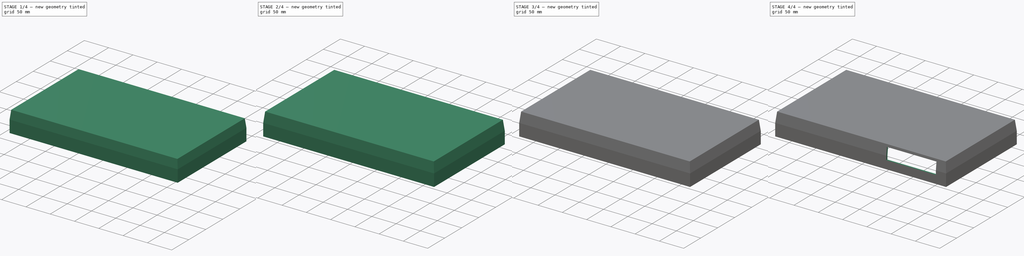
[diagram: build sequence overview — one tinted view per stage of 4, left to right]
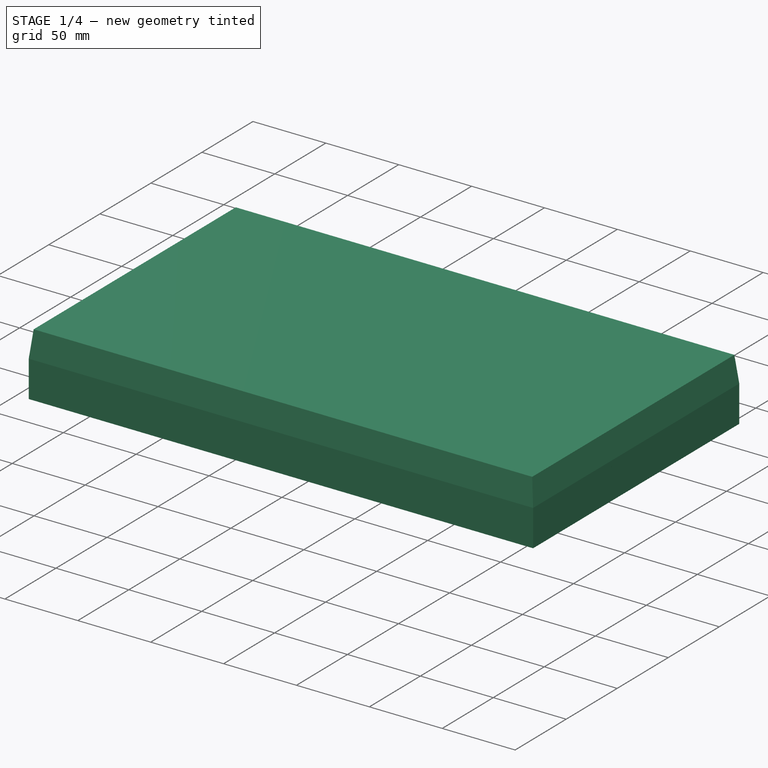
[diagram: stage 1 of 4 — iso view after this stage's code; geometry added in this stage tinted green]
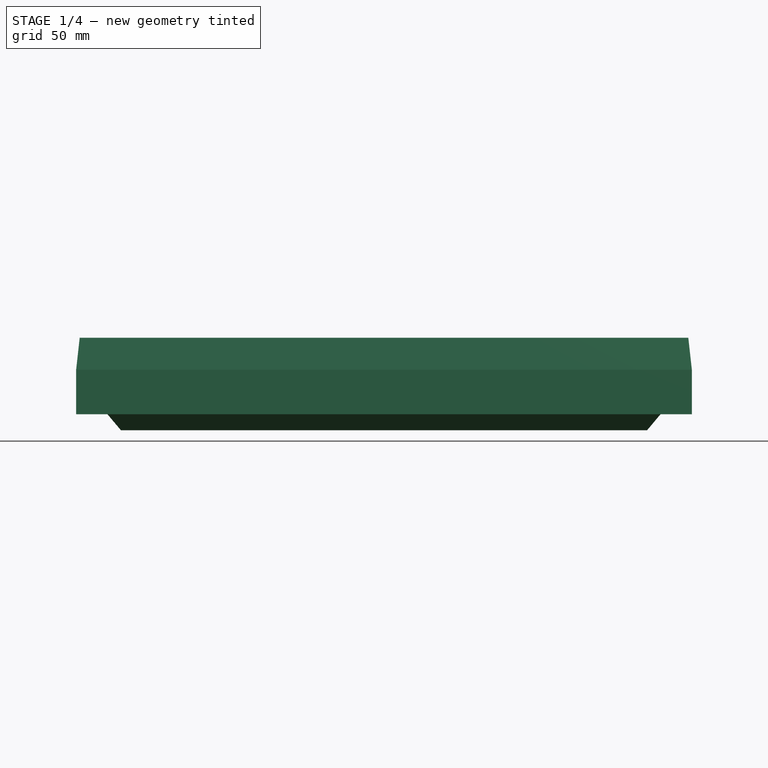
[diagram: stage 1 of 4 — front view after this stage's code; geometry added in this stage tinted green]
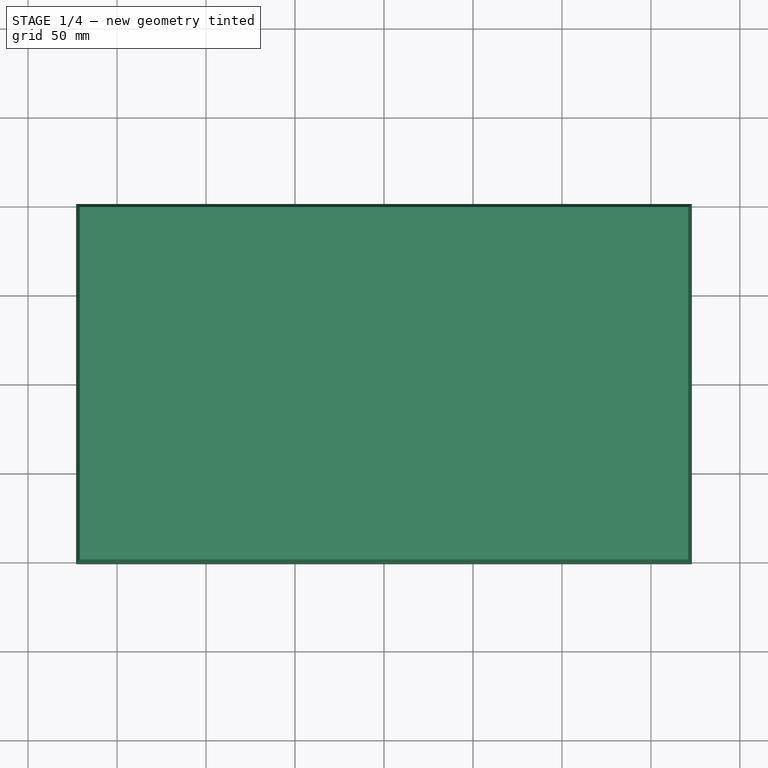
[diagram: stage 1 of 4 — top view after this stage's code; geometry added in this stage tinted green]
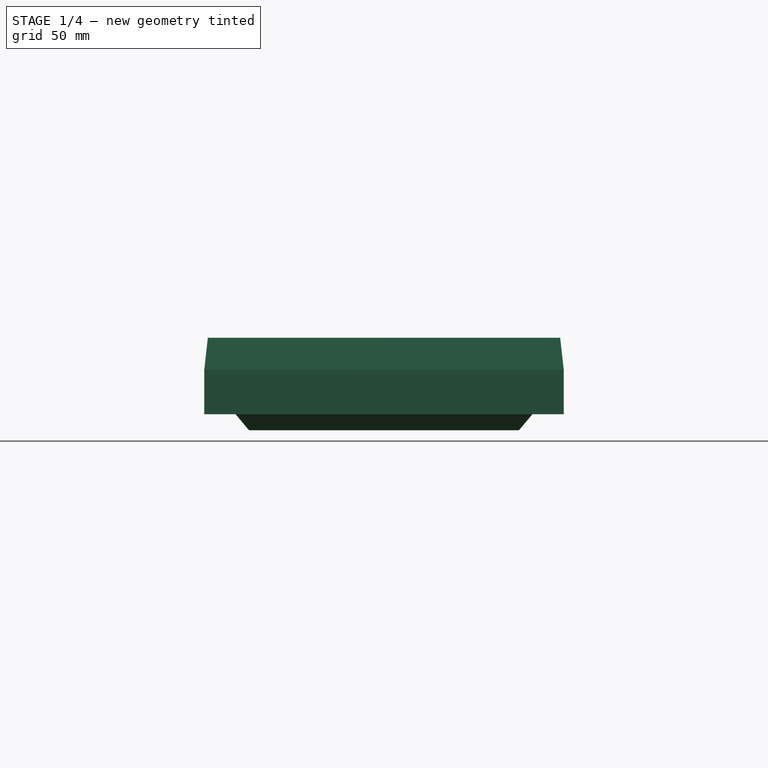
[diagram: stage 1 of 4 — right view after this stage's code; geometry added in this stage tinted green]
FCSTD DOCUMENT  (FreeCAD 0.21R33771 (Git))
Label: CaseTopNewSolid
License: All rights reserved
LicenseURL: https://en.wikipedia.org/wiki/All_rights_reserved
objects: Sketcher::SketchObject×7, PartDesign::Pad×4, PartDesign::Pocket×3, PartDesign::Chamfer×2, PartDesign::Body×2, Spreadsheet::Sheet×1, PartDesign::Thickness×1, PartDesign::Boolean×1, App::Part×1
note: 30 computed .brp shape members not serialized (recipe doc carries the construction recipe); baked Part::Feature solids carry a one-line shape summary decoded from their .brp

FEATURE [Spreadsheet::Sheet] Spreadsheet
  cells = A1='Column Height; B1=22; A2='Column Radius; B2=4; A3='Fin Height; B3==B1 - B4; A4='Fin Raise; B4=2
FEATURE [Sketcher::SketchObject] Sketch011
  AttachmentOffset = pos=(0,0,6) rot=(0,0,1;0rad)
  FullyConstrained = true
  MapMode = 5
  Placement = pos=(0,0,6) rot=(0,0,1;0rad)
  Support = -> [XY_Plane008]
  sketch-geometry (5):
    g0: LineSegment StartX=-173 StartY=101 StartZ=0 EndX=-173 EndY=-101 EndZ=0
    g1: LineSegment StartX=-173 StartY=-101 StartZ=0 EndX=173 EndY=-101 EndZ=0
    g2: LineSegment StartX=173 StartY=-101 StartZ=0 EndX=173 EndY=101 EndZ=0
    g3: LineSegment StartX=173 StartY=101 StartZ=0 EndX=-173 EndY=101 EndZ=0
    g4: GeomPoint X=0 Y=0 Z=0
  constraints (12):
    c: Coincident(g0,g1)
    c: Coincident(g1,g2)
    c: Coincident(g2,g3)
    c: Coincident(g3,g0)
    c: Horizontal(g1)
    c: Horizontal(g3)
    c: Vertical(g0)
    c: Vertical(g2)
    c: Symmetric(g1,g0,g4)
    c: Coincident(g4,g-1)
    c: DistanceX(g3,g3) = 346
    c: DistanceY(g0,g0) = 202
FEATURE [PartDesign::Pad] Pad003
  Direction = (0,0,1)
  Length = 43
  Length2 = 10
  Profile = -> Sketch011
  ReferenceAxis = -> Sketch011 [N_Axis]
  Refine = true
  Type = 0
FEATURE [PartDesign::Chamfer] Chamfer
  Angle = 45
  Base = -> Pad003 [Face6]
  BaseFeature = -> Pad003
  ChamferType = 1
  FlipDirection = false
  Refine = true
  Size = 2
  Size2 = 18
  SupportTransform = false
  UseAllEdges = false
FEATURE [Sketcher::SketchObject] Sketch013
  AttachmentOffset = pos=(0,0,27) rot=(0,0,1;0rad)
  FullyConstrained = false
  MapMode = 5
  Placement = pos=(0,0,27) rot=(0,0,1;0rad)
  Support = -> [XY_Plane009]
  sketch-geometry (5):
    g0: LineSegment StartX=173 StartY=-101 StartZ=0 EndX=173 EndY=101 EndZ=0
    g1: LineSegment StartX=173 StartY=101 StartZ=0 EndX=-173 EndY=101 EndZ=0
    g2: LineSegment StartX=-173 StartY=101 StartZ=0 EndX=-173 EndY=-101 EndZ=0
    g3: LineSegment StartX=-173 StartY=-101 StartZ=0 EndX=173 EndY=-101 EndZ=0
    g4: GeomPoint X=0 Y=0 Z=0
  constraints (10):
    c: Coincident(g0,g1)
    c: Coincident(g1,g2)
    c: Coincident(g2,g3)
    c: Coincident(g3,g0)
    c: Horizontal(g1)
    c: Horizontal(g3)
    c: Vertical(g0)
    c: Vertical(g2)
    c: Symmetric(g1,g0,g4)
    c: Coincident(g4,g-1)
FEATURE [PartDesign::Pad] Pad005
  Direction = (0,0,1)
  Length = 30
  Length2 = 10
  Profile = -> Sketch013
  ReferenceAxis = -> Sketch013 [N_Axis]
  Refine = true
  Reversed = true
  TaperAngle = -40
  Type = 0
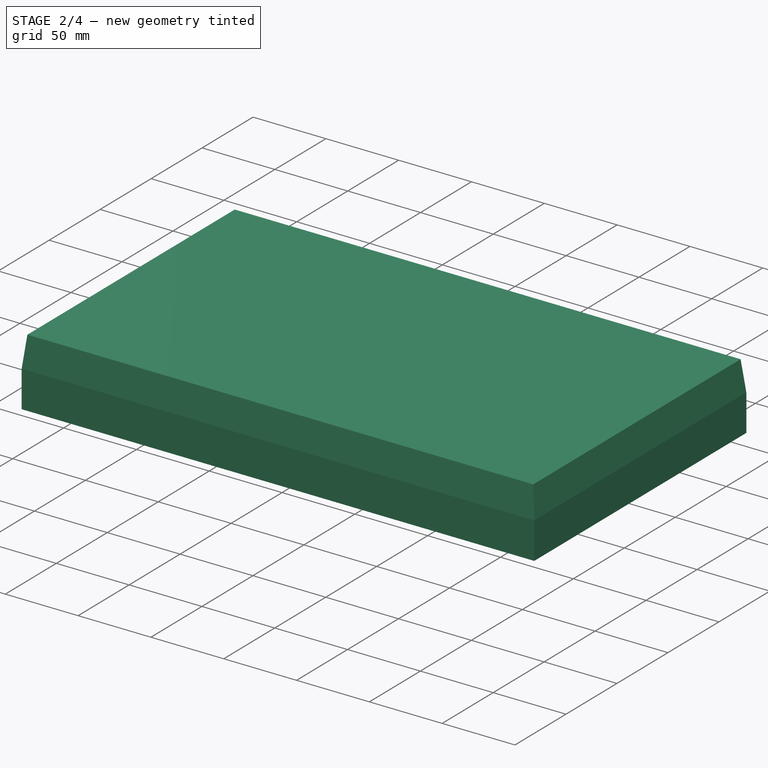
[diagram: stage 2 of 4 — iso view after this stage's code; geometry added in this stage tinted green]
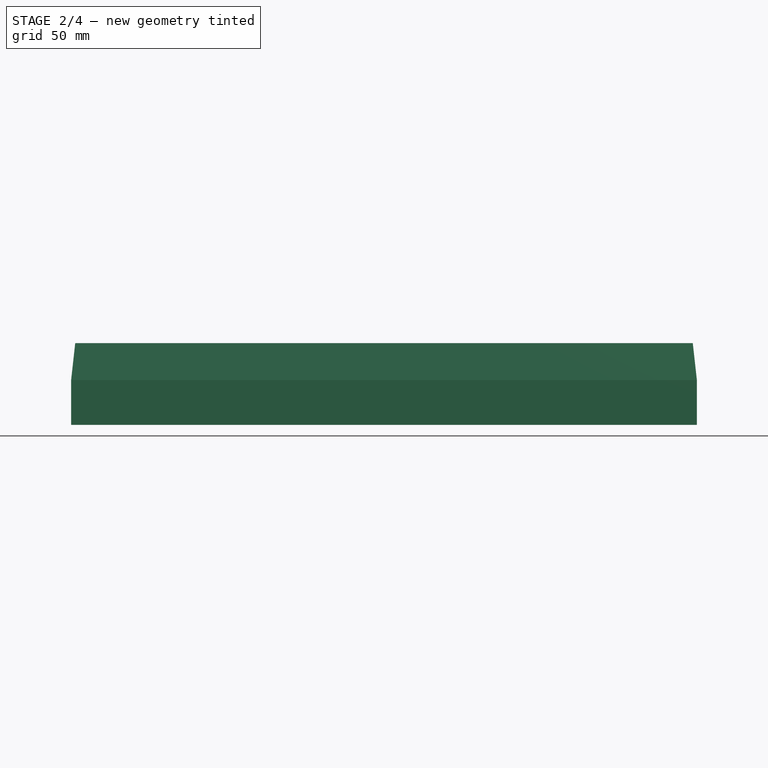
[diagram: stage 2 of 4 — front view after this stage's code; geometry added in this stage tinted green]
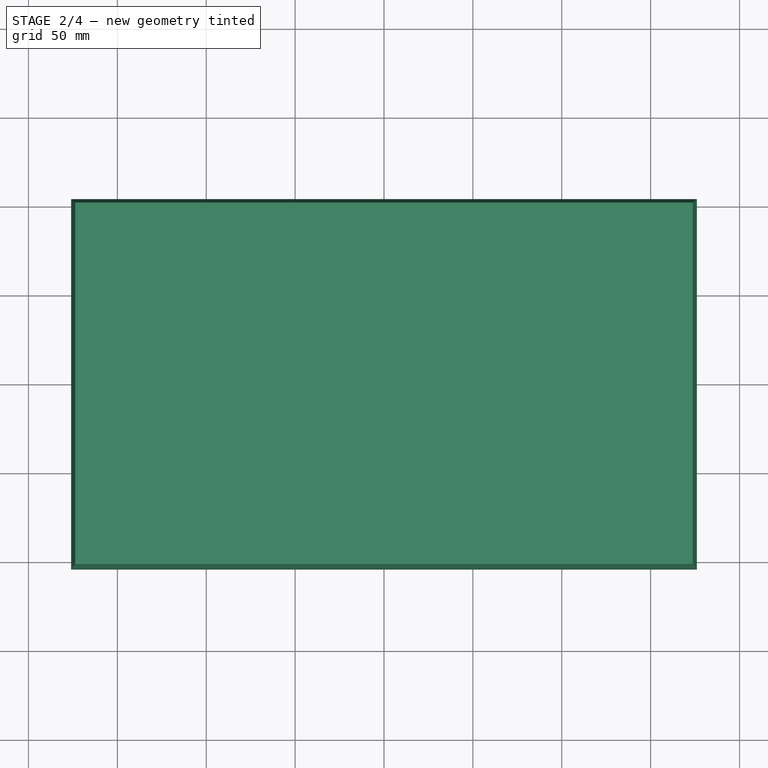
[diagram: stage 2 of 4 — top view after this stage's code; geometry added in this stage tinted green]
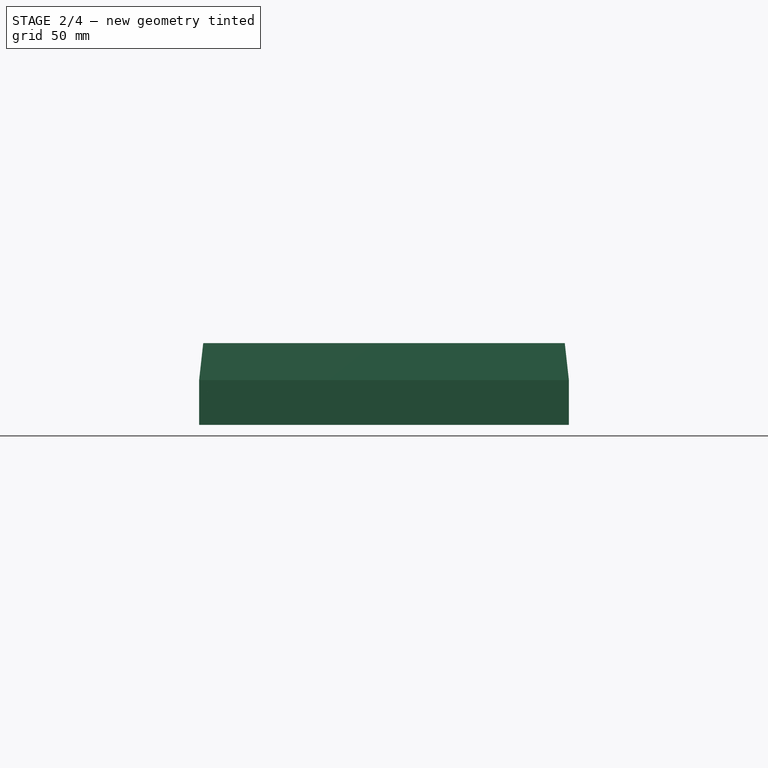
[diagram: stage 2 of 4 — right view after this stage's code; geometry added in this stage tinted green]
FEATURE [PartDesign::Thickness] Thickness001
  Base = -> Chamfer [Face4]
  BaseFeature = -> Chamfer
  Intersection = true
  Join = 1
  Mode = 0
  Refine = true
  SupportTransform = false
  Value = 3
FEATURE [Sketcher::SketchObject] Sketch012  label="Mounts"
  ExternalGeometry = -> [Thickness001]
  FullyConstrained = true
  MapMode = 5
  Placement = pos=(0,0,6) rot=(1,0,0;3.14159rad)
  Support = -> [Thickness001]
  sketch-geometry (40):
    g0: LineSegment StartX=-164 StartY=101 StartZ=0 EndX=-156 EndY=101 EndZ=0
    g1: LineSegment StartX=-156 StartY=101 StartZ=0 EndX=-156 EndY=95 EndZ=0
    g2: ArcOfCircle CenterX=-160 CenterY=95 CenterZ=0 NormalX=0 NormalY=0 NormalZ=1 AngleXU=0 Radius=4 StartAngle=3.14159 EndAngle=6.28319
    g3: LineSegment StartX=-164 StartY=95 StartZ=0 EndX=-164 EndY=101 EndZ=0
    g4: LineSegment StartX=164 StartY=101 StartZ=0 EndX=156 EndY=101 EndZ=0
    g5: LineSegment StartX=156 StartY=101 StartZ=0 EndX=156 EndY=95 EndZ=0
    g6: ArcOfCircle CenterX=160 CenterY=95 CenterZ=0 NormalX=0 NormalY=0 NormalZ=1 AngleXU=0 Radius=4 StartAngle=3.14159 EndAngle=6.28319
    g7: LineSegment StartX=164 StartY=95 StartZ=0 EndX=164 EndY=101 EndZ=0
    g8: LineSegment StartX=-3.99999 StartY=101 StartZ=0 EndX=4.00002 EndY=101 EndZ=0
    g9: LineSegment StartX=4.00002 StartY=101 StartZ=0 EndX=4.00002 EndY=95 EndZ=0
    g10: ArcOfCircle CenterX=1.6e-05 CenterY=95 CenterZ=0 NormalX=0 NormalY=0 NormalZ=1 AngleXU=0 Radius=4 StartAngle=3.14159 EndAngle=6.28319
    g11: LineSegment StartX=-3.99999 StartY=95 StartZ=0 EndX=-3.99999 EndY=101 EndZ=0
    g12: LineSegment StartX=-3.99999 StartY=-101 StartZ=0 EndX=4.00002 EndY=-101 EndZ=0
    g13: LineSegment StartX=4.00002 StartY=-101 StartZ=0 EndX=4.00002 EndY=-95 EndZ=0
    g14: ArcOfCircle CenterX=1.6e-05 CenterY=-95 CenterZ=0 NormalX=0 NormalY=0 NormalZ=1 AngleXU=0 Radius=4 StartAngle=0 EndAngle=3.14159
    g15: LineSegment StartX=-3.99999 StartY=-95 StartZ=0 EndX=-3.99999 EndY=-101 EndZ=0
    g16: LineSegment StartX=-159.001 StartY=-101 StartZ=0 EndX=-151.001 EndY=-101 EndZ=0
    g17: LineSegment StartX=-151.001 StartY=-101 StartZ=0 EndX=-151.001 EndY=-95 EndZ=0
    g18: ArcOfCircle CenterX=-155.001 CenterY=-95 CenterZ=0 NormalX=0 NormalY=0 NormalZ=1 AngleXU=0 Radius=4 StartAngle=0 EndAngle=3.14159
    g19: LineSegment StartX=-159.001 StartY=-95 StartZ=0 EndX=-159.001 EndY=-101 EndZ=0
    g20: LineSegment StartX=151 StartY=-101 StartZ=0 EndX=159 EndY=-101 EndZ=0
    g21: LineSegment StartX=159 StartY=-101 StartZ=0 EndX=159 EndY=-95 EndZ=0
    g22: ArcOfCircle CenterX=155 CenterY=-95 CenterZ=0 NormalX=0 NormalY=0 NormalZ=1 AngleXU=0 Radius=4 StartAngle=0 EndAngle=3.14159
    g23: LineSegment StartX=151 StartY=-95 StartZ=0 EndX=151 EndY=-101 EndZ=0
    g24: LineSegment StartX=-173 StartY=4 StartZ=0 EndX=-167 EndY=4 EndZ=0
    g25: ArcOfCircle CenterX=-167 CenterY=0 CenterZ=0 NormalX=0 NormalY=0 NormalZ=1 AngleXU=0 Radius=4 StartAngle=4.71242 EndAngle=7.85398
    g26: LineSegment StartX=-167 StartY=-4 StartZ=0 EndX=-173 EndY=-4 EndZ=0
    g27: LineSegment StartX=-173 StartY=-4 StartZ=0 EndX=-173 EndY=4 EndZ=0
    g28: LineSegment StartX=173 StartY=4 StartZ=0 EndX=167 EndY=4 EndZ=0
    g29: ArcOfCircle CenterX=167 CenterY=0 CenterZ=0 NormalX=0 NormalY=0 NormalZ=1 AngleXU=0 Radius=4 StartAngle=1.5708 EndAngle=4.71236
    g30: LineSegment StartX=167 StartY=-4 StartZ=0 EndX=173 EndY=-4 EndZ=0
    g31: LineSegment StartX=173 StartY=-4 StartZ=0 EndX=173 EndY=4 EndZ=0
    g32: Circle CenterX=-155.001 CenterY=-95 CenterZ=0 NormalX=0 NormalY=0 NormalZ=1 AngleXU=0 Radius=2.25
    g33: Circle CenterX=1.6e-05 CenterY=-95 CenterZ=0 NormalX=0 NormalY=0 NormalZ=1 AngleXU=0 Radius=2.25
    g34: Circle CenterX=155.001 CenterY=-95 CenterZ=0 NormalX=0 NormalY=0 NormalZ=1 AngleXU=0 Radius=2.25
    g35: Circle CenterX=-167 CenterY=0 CenterZ=0 NormalX=0 NormalY=0 NormalZ=1 AngleXU=0 Radius=2.25
    g36: Circle CenterX=-160 CenterY=95 CenterZ=0 NormalX=0 NormalY=0 NormalZ=1 AngleXU=0 Radius=2.25
    g37: Circle CenterX=160 CenterY=95 CenterZ=0 NormalX=0 NormalY=0 NormalZ=1 AngleXU=0 Radius=2.25
    g38: Circle CenterX=167 CenterY=0 CenterZ=0 NormalX=0 NormalY=0 NormalZ=1 AngleXU=0 Radius=2.25
    g39: Circle CenterX=1.6e-05 CenterY=95 CenterZ=0 NormalX=0 NormalY=0 NormalZ=1 AngleXU=0 Radius=2.25
  constraints (85):
    c: PointOnObject(g0,g-3)
    c: PointOnObject(g0,g-3)
    c: Coincident(g0,g1)
    c: Vertical(g1)
    c: Tangent(g1,g2) = 1.5708
    c: Angle(g2) = 3.14159
    c: Tangent(g2,g3) = 1.5708
    c: Coincident(g0,g3)
    c: Block(g1)
    c: Block(g0)
    c: Coincident(g4,g5)
    c: Tangent(g5,g6) = -1.5708
    c: Angle(g6) = 3.14159
    c: Tangent(g6,g7) = -1.5708
    c: Coincident(g4,g7)
    c: Block(g5)
    c: Block(g4)
    c: Coincident(g8,g9)
    c: Vertical(g9)
    c: Tangent(g9,g10) = 1.5708
    c: Tangent(g10,g11) = 1.5708
    c: Coincident(g8,g11)
    c: Block(g9)
    c: Block(g8)
    c: Block(g10)
    c: Radius(g10) = 4
    c: Coincident(g12,g13)
    c: Vertical(g13)
    c: Tangent(g13,g14) = -1.5708
    c: Tangent(g14,g15) = -1.5708
    c: Coincident(g12,g15)
    c: Block(g13)
    c: Block(g12)
    c: Block(g14)
    c: Radius(g14) = 4
    c: Coincident(g16,g17)
    c: Vertical(g17)
    c: Tangent(g17,g18) = -1.5708
    c: Tangent(g18,g19) = -1.5708
    c: Coincident(g16,g19)
    c: Block(g17)
    c: Block(g16)
    c: Block(g18)
    c: Equal(g14,g18) = 4
    c: Coincident(g20,g21)
    c: Vertical(g21)
    c: Tangent(g21,g22) = -1.5708
    c: Tangent(g22,g23) = -1.5708
    c: Coincident(g20,g23)
    c: Block(g21)
    c: Block(g20)
    c: Block(g22)
    c: Equal(g14,g22) = 4
    c: Tangent(g24,g25) = 1.5708
    c: Coincident(g25,g26)
    c: Coincident(g26,g27)
    c: Coincident(g27,g24)
    c: Vertical(g27)
    c: DistanceX(g24,g24) = 6
    c: Radius(g25) = 4
    c: Parallel(g24,g-1)
    c: Parallel(g26,g-1)
    c: Block(g25)
    c: Tangent(g28,g29) = -1.5708
    c: Coincident(g29,g30)
    c: Coincident(g30,g31)
    c: Coincident(g31,g28)
    c: Vertical(g31)
    c: Radius(g29) = 4
    c: Block(g29)
    c: PointOnObject(g28,g-6)
    c: Block(g30)
    c: Coincident(g32,g18)
    c: Diameter(g32) = 4.5
    c: Equal(g32,g33) = 4.5
    c: Block(g33)
    c: Diameter(g34) = 4.5
    c: Block(g34)
    c: Equal(g32,g35) = 4.5
    c: Block(g35)
    c: Equal(g32,g36) = 4.5
    c: Block(g36)
    c: Block(g37)
    c: Block(g38)
    c: Block(g39)
FEATURE [PartDesign::Pad] Pad004  label="Mounts001"
  BaseFeature = -> Thickness001
  Direction = (0,0,-1)
  Length = 21
  Length2 = 10
  Profile = -> Sketch012
  ReferenceAxis = -> Sketch012 [N_Axis]
  Refine = true
  Reversed = true
  Type = 0
FEATURE [PartDesign::Body] Body006  label="SupportCut"
  Group = -> [Sketch013,Pad005]
  Origin = -> Origin009
  Tip = -> Pad005
FEATURE [PartDesign::Boolean] Boolean
  BaseFeature = -> Pad004
  Group = -> [Body006]
  Refine = true
  Type = 1
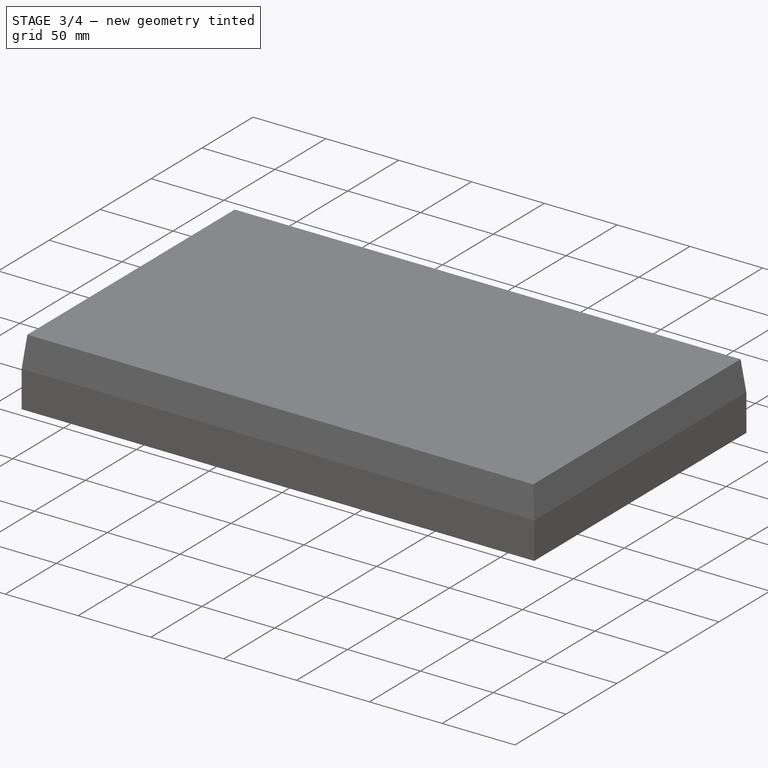
[diagram: stage 3 of 4 — iso view after this stage's code; geometry added in this stage tinted green]
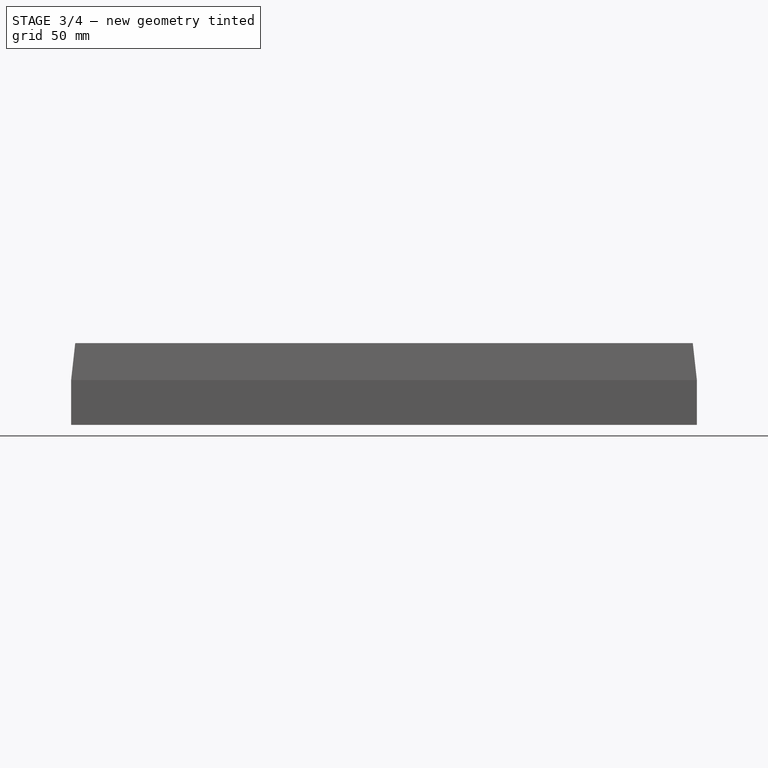
[diagram: stage 3 of 4 — front view after this stage's code; geometry added in this stage tinted green]
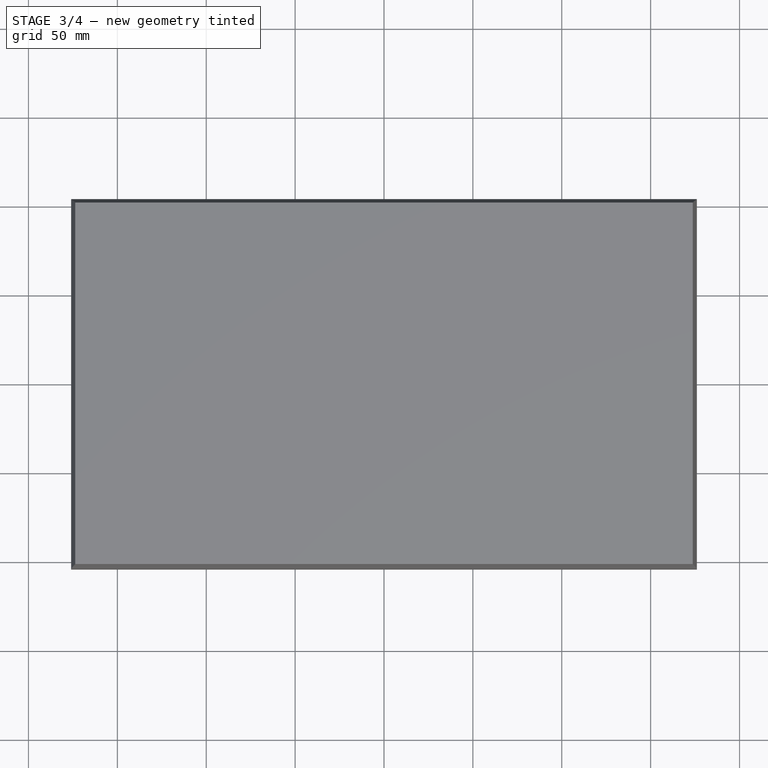
[diagram: stage 3 of 4 — top view after this stage's code; geometry added in this stage tinted green]
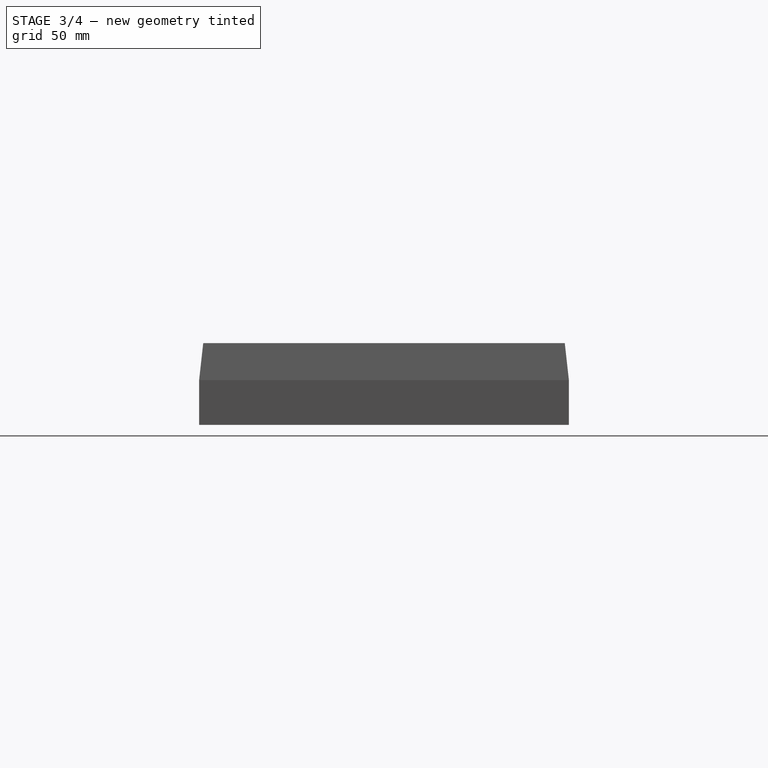
[diagram: stage 3 of 4 — right view after this stage's code; geometry added in this stage tinted green]
FEATURE [Sketcher::SketchObject] Sketch014
  FullyConstrained = true
  MapMode = 5
  Placement = pos=(0,0,6) rot=(1,0,0;3.14159rad)
  Support = -> [Boolean]
  sketch-geometry (10):
    g0: LineSegment StartX=174.5 StartY=-102.5 StartZ=0 EndX=174.5 EndY=102.5 EndZ=0
    g1: LineSegment StartX=174.5 StartY=102.5 StartZ=0 EndX=-174.5 EndY=102.5 EndZ=0
    g2: LineSegment StartX=-174.5 StartY=102.5 StartZ=0 EndX=-174.5 EndY=-102.5 EndZ=0
    g3: LineSegment StartX=-174.5 StartY=-102.5 StartZ=0 EndX=174.5 EndY=-102.5 EndZ=0
    g4: GeomPoint X=0 Y=0 Z=0
    g5: LineSegment StartX=172 StartY=-100 StartZ=0 EndX=172 EndY=100 EndZ=0
    g6: LineSegment StartX=172 StartY=100 StartZ=0 EndX=-172 EndY=100 EndZ=0
    g7: LineSegment StartX=-172 StartY=100 StartZ=0 EndX=-172 EndY=-100 EndZ=0
    g8: LineSegment StartX=-172 StartY=-100 StartZ=0 EndX=172 EndY=-100 EndZ=0
    g9: GeomPoint X=0 Y=0 Z=0
  constraints (22):
    c: Coincident(g0,g1)
    c: Coincident(g1,g2)
    c: Coincident(g2,g3)
    c: Coincident(g3,g0)
    c: Horizontal(g1)
    c: Horizontal(g3)
    c: Vertical(g0)
    c: Vertical(g2)
    c: Symmetric(g1,g0,g4)
    c: Coincident(g4,g-1)
    c: Coincident(g5,g6)
    c: Coincident(g6,g7)
    c: Coincident(g7,g8)
    c: Coincident(g8,g5)
    c: Horizontal(g6)
    c: Horizontal(g8)
    c: Vertical(g5)
    c: Vertical(g7)
    c: Symmetric(g6,g5,g9)
    c: Coincident(g9,g4)
    c: Block(g1)
    c: Block(g6)
FEATURE [PartDesign::Pocket] Pocket
  BaseFeature = -> Boolean
  Direction = (0,0,1)
  Length = 3
  Length2 = 5
  Profile = -> Sketch014
  ReferenceAxis = -> Sketch014 [N_Axis]
  Refine = true
  Type = 0
FEATURE [Sketcher::SketchObject] Sketch  label="FloppyMountPosts"
  FullyConstrained = true
  MapMode = 5
  Placement = pos=(0,0,49) rot=(1,0,0;3.14159rad)
  Support = -> [Pocket]
  sketch-geometry (4):
    g0: Circle CenterX=161.5 CenterY=77.4 CenterZ=0 NormalX=0 NormalY=0 NormalZ=1 AngleXU=0 Radius=4
    g1: Circle CenterX=46.5 CenterY=77.4 CenterZ=0 NormalX=0 NormalY=0 NormalZ=1 AngleXU=0 Radius=4
    g2: Circle CenterX=46.5 CenterY=-12.6 CenterZ=0 NormalX=0 NormalY=0 NormalZ=1 AngleXU=0 Radius=4
    g3: Circle CenterX=161.5 CenterY=-12.6 CenterZ=0 NormalX=0 NormalY=0 NormalZ=1 AngleXU=0 Radius=4
  constraints (10):
    c: DistanceX(g1,g0) = 115
    c: Equal(g1,g0)
    c: Diameter(g1) = 8
    c: Equal(g1,g2) = 8
    c: Block(g1)
    c: Block(g0)
    c: DistanceY(g2,g1) = 90
    c: DistanceY(g3,g0) = 90
    c: Block(g2)
    c: Block(g3)
FEATURE [PartDesign::Pad] Pad  label="FloppyMountPosts001"
  BaseFeature = -> Pocket
  Direction = (0,0,-1)
  Length = 6
  Length2 = 10
  Profile = -> Sketch
  ReferenceAxis = -> Sketch [N_Axis]
  Refine = true
  Type = 0
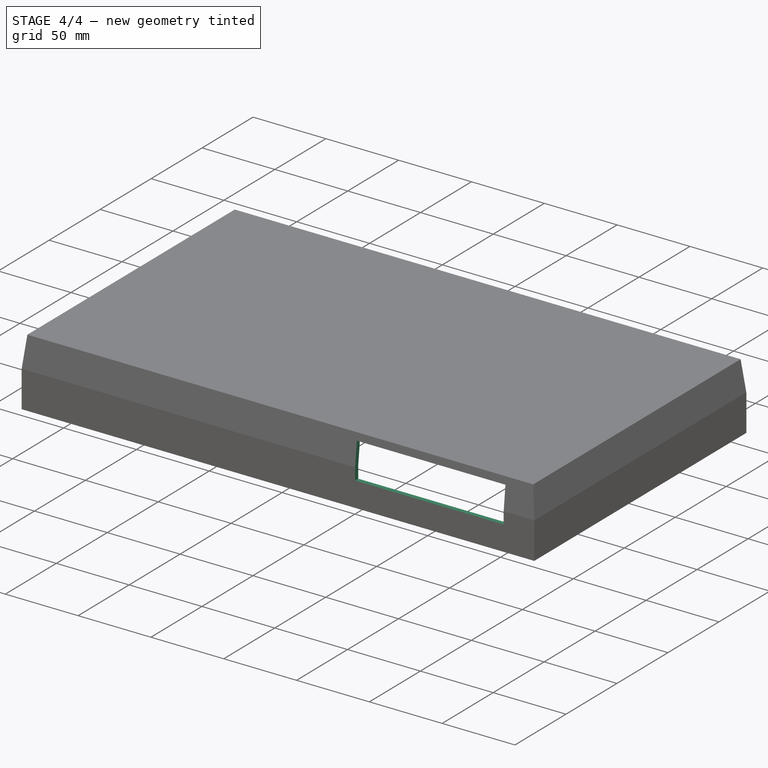
[diagram: stage 4 of 4 — iso view after this stage's code; geometry added in this stage tinted green]
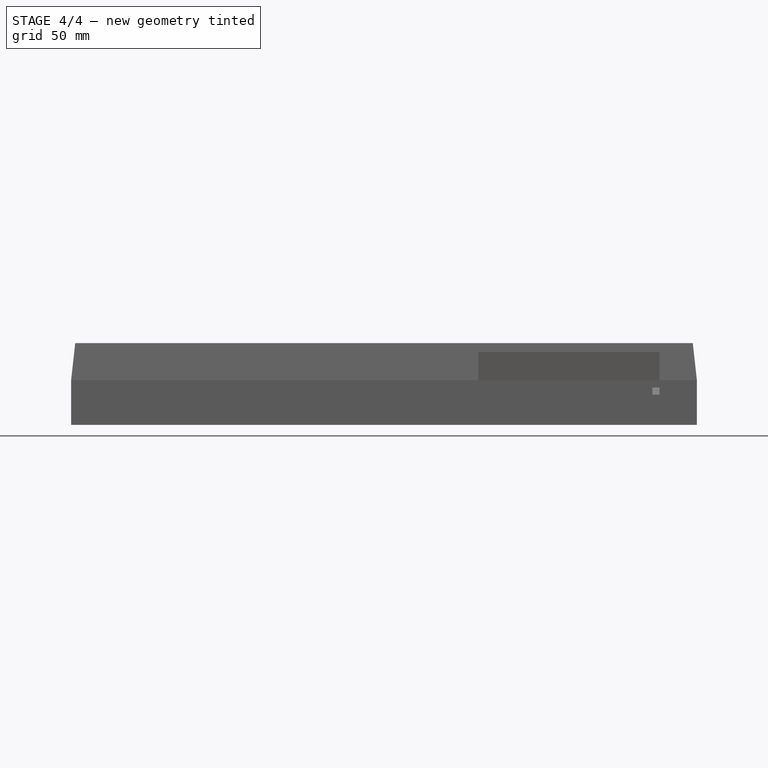
[diagram: stage 4 of 4 — front view after this stage's code; geometry added in this stage tinted green]
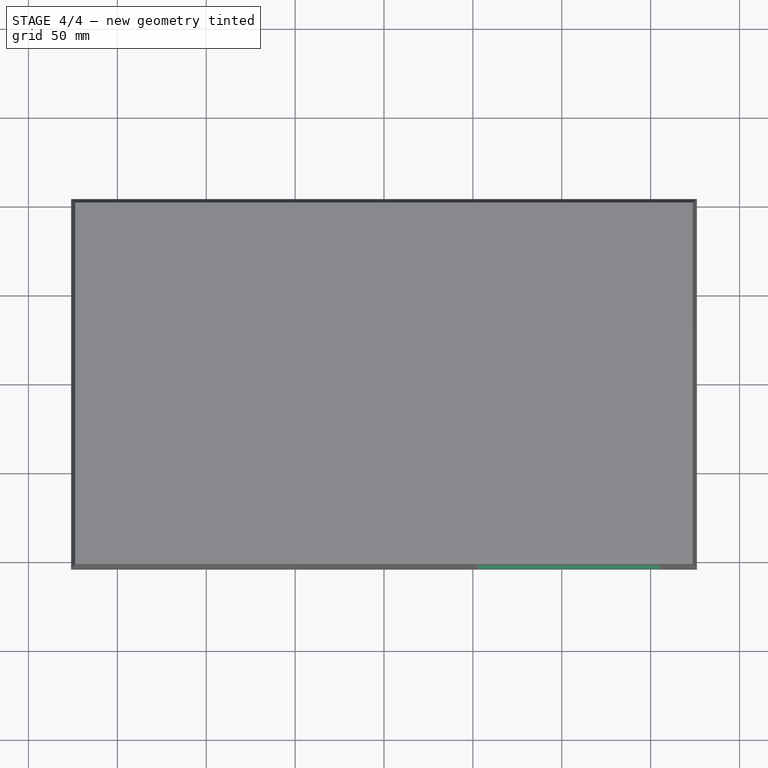
[diagram: stage 4 of 4 — top view after this stage's code; geometry added in this stage tinted green]
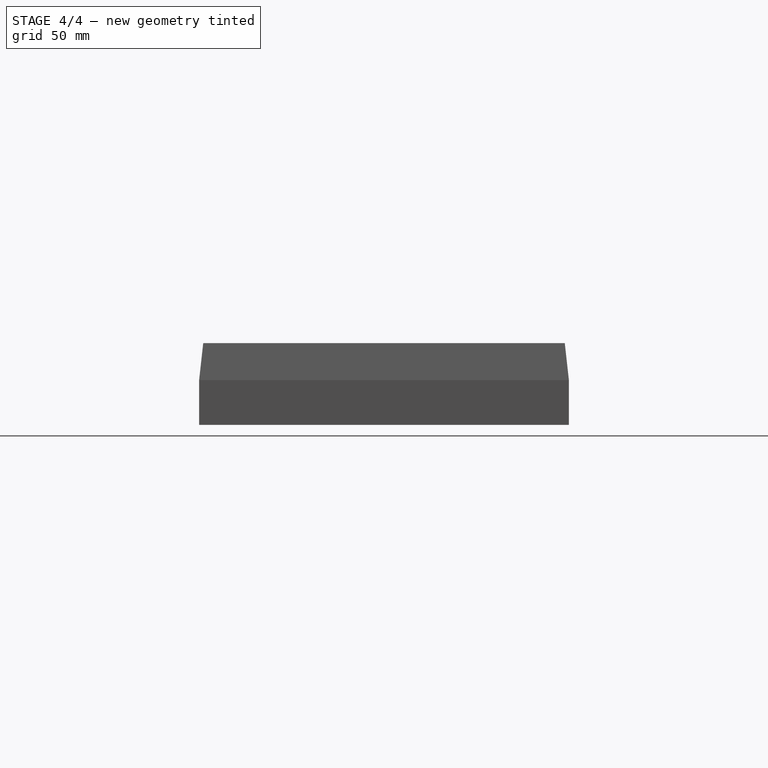
[diagram: stage 4 of 4 — right view after this stage's code; geometry added in this stage tinted green]
FEATURE [Sketcher::SketchObject] Sketch015  label="HotInsertsHoles"
  ExternalGeometry = -> [Pad]
  FullyConstrained = true
  MapMode = 5
  Placement = pos=(0,0,43) rot=(1,0,0;3.14159rad)
  Support = -> [Pad]
  sketch-geometry (4):
    g0: Circle CenterX=46.5 CenterY=77.4 CenterZ=0 NormalX=0 NormalY=0 NormalZ=1 AngleXU=0 Radius=2
    g1: Circle CenterX=161.5 CenterY=77.4 CenterZ=0 NormalX=0 NormalY=0 NormalZ=1 AngleXU=0 Radius=2
    g2: Circle CenterX=161.5 CenterY=-12.6 CenterZ=0 NormalX=0 NormalY=0 NormalZ=1 AngleXU=0 Radius=2
    g3: Circle CenterX=46.5 CenterY=-12.6 CenterZ=0 NormalX=0 NormalY=0 NormalZ=1 AngleXU=0 Radius=2
  constraints (8):
    c: Coincident(g0,g-3)
    c: Coincident(g1,g-4)
    c: Coincident(g2,g-5)
    c: Coincident(g3,g-6)
    c: Equal(g3,g0)
    c: Equal(g3,g1)
    c: Equal(g3,g2)
    c: Diameter(g3) = 4
FEATURE [PartDesign::Pocket] Pocket001  label="HotInsertsHoles001"
  BaseFeature = -> Pad
  Direction = (0,0,1)
  Length = 7
  Length2 = 5
  Profile = -> Sketch015
  ReferenceAxis = -> Sketch015 [N_Axis]
  Refine = true
  Type = 0
FEATURE [PartDesign::Chamfer] Chamfer001  label="MountPostsChamfer"
  Angle = 45
  Base = -> Pocket001 [Edge231,Edge229,Edge230,Edge232]
  BaseFeature = -> Pocket001
  ChamferType = 0
  FlipDirection = false
  Refine = true
  Size = 1
  Size2 = 1
  SupportTransform = false
  UseAllEdges = false
FEATURE [Sketcher::SketchObject] Sketch016  label="FloppyBezelCutout"
  AttachmentOffset = pos=(0,-2,0) rot=(0,0,1;0rad)
  FullyConstrained = true
  MapMode = 5
  Placement = pos=(0,4e-16,-2) rot=(1,0,0;1.5708rad)
  Support = -> [XZ_Plane008]
  sketch-geometry (4):
    g0: LineSegment StartX=53 StartY=49 StartZ=0 EndX=155 EndY=49 EndZ=0
    g1: LineSegment StartX=155 StartY=49 StartZ=0 EndX=155 EndY=25 EndZ=0
    g2: LineSegment StartX=155 StartY=25 StartZ=0 EndX=53 EndY=25 EndZ=0
    g3: LineSegment StartX=53 StartY=25 StartZ=0 EndX=53 EndY=49 EndZ=0
  constraints (12):
    c: Coincident(g0,g1)
    c: Coincident(g1,g2)
    c: Coincident(g2,g3)
    c: Coincident(g3,g0)
    c: Horizontal(g0)
    c: Horizontal(g2)
    c: Vertical(g1)
    c: Vertical(g3)
    c: DistanceX(g0,g0) = 102
    c: DistanceY(g3,g3) = 24
    c: DistanceX(g0) = 53
    c: DistanceY(g0) = 49
FEATURE [PartDesign::Pocket] Pocket002  label="FloppyBezelCutout001"
  BaseFeature = -> Chamfer001
  Direction = (0,1,2e-16)
  Length = 0
  Length2 = 5
  Profile = -> Sketch016
  ReferenceAxis = -> Sketch016 [N_Axis]
  Refine = true
  Reversed = true
  Type = 1
FEATURE [PartDesign::Body] Body005  label="TopLid001"
  Group = -> [Sketch011,Pad003,Chamfer,Thickness001,Sketch012,Pad004,Boolean,Sketch014,Pocket,Sketch,Pad,Sketch015,Pocket001,Chamfer001,Sketch016,Pocket002]
  Origin = -> Origin008
  Placement = pos=(0,0,2) rot=(0,0,1;0rad)
  Tip = -> Pocket002
FEATURE [App::Part] Part002  label="TopLid"
  Group = -> [Body005]
  Origin = -> Origin007
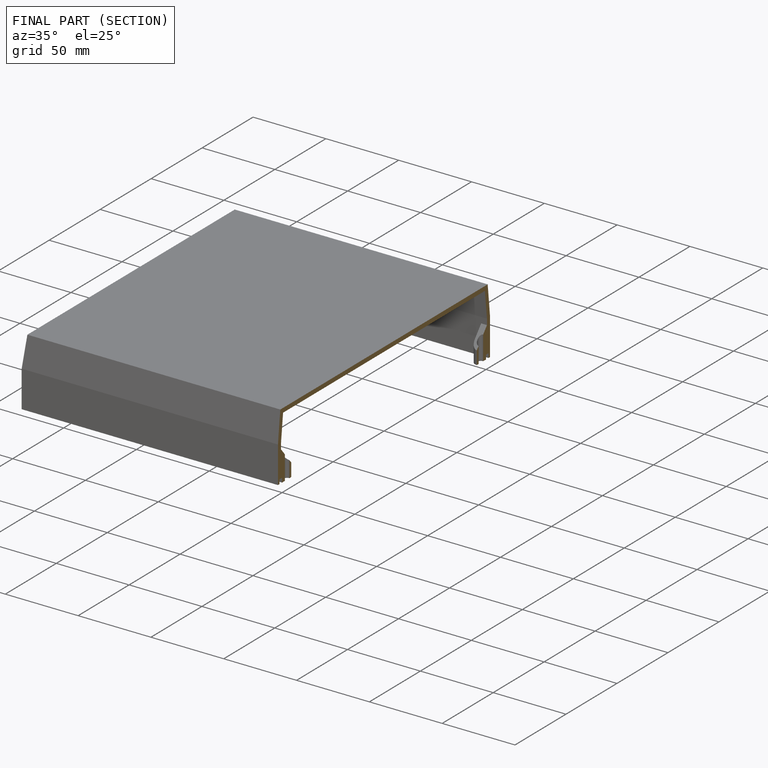
[diagram: finished part — half-section view (interior)]
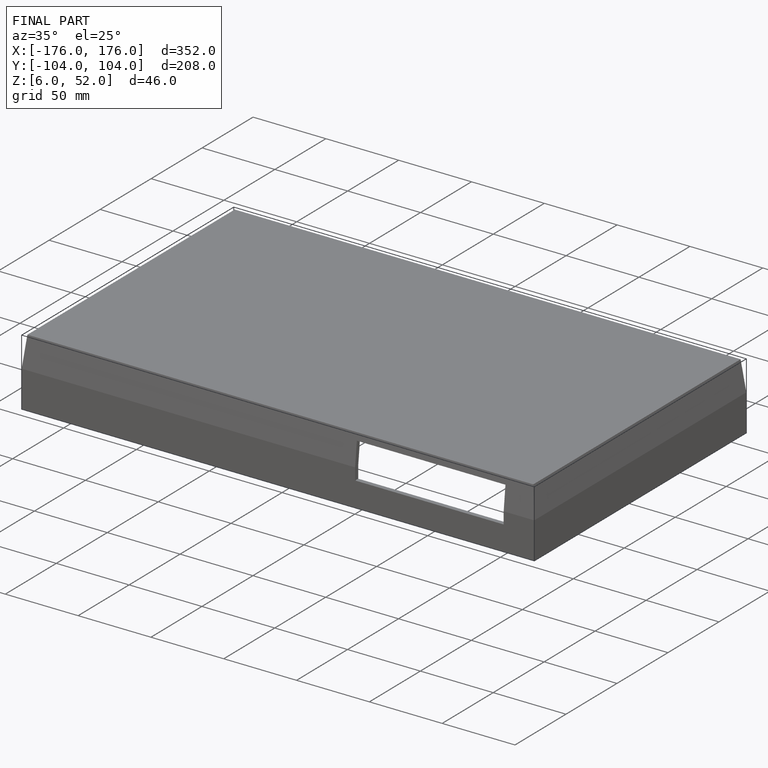
[diagram: finished part — iso view with bounding-box wireframe]
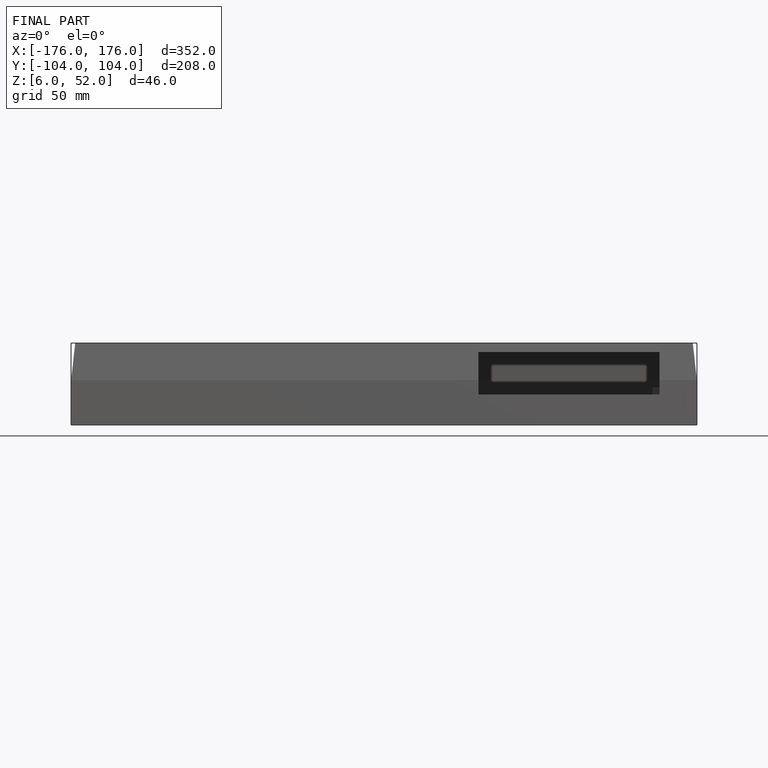
[diagram: finished part — front view with bounding-box wireframe]
